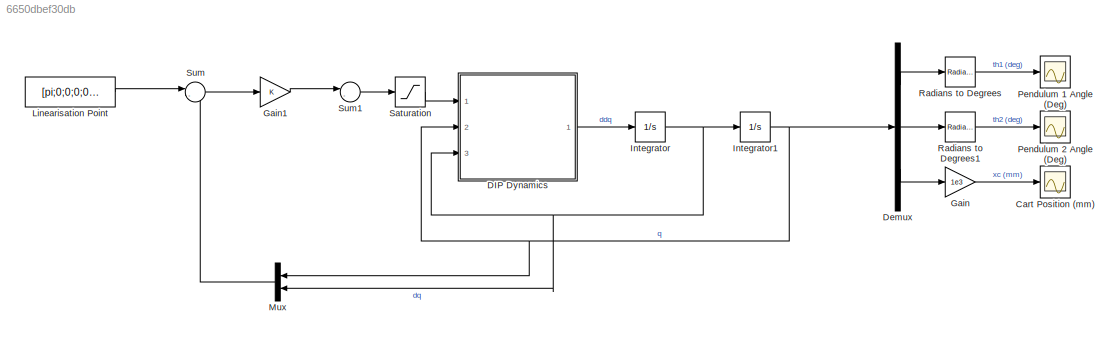
MODEL slx_6650dbef30db
KIND model
CONFIG AbsTol = auto
CONFIG EnableMultiTasking = off
CONFIG FixedStep = 0.002
CONFIG MaxStep = auto
CONFIG MinStep = auto
CONFIG RelTol = 1e-3
CONFIG SampleTimeConstraint = Unconstrained
CONFIG SolverName = ode4
CONFIG StartTime = 0.0
CONFIG StopTime = 10
BLOCK [Scope] Cart Position (mm)
  Floating = off
  NumInputPorts = 1
  Ports = [1]
  ScopeSpecificationString = Simulink.scopes.TimeScopeBlockCfg('CurrentConfiguration', extmgr.ConfigurationSet(extmgr.Configuration('Core','General UI',true),extmgr.Configuration('Core','Source UI',true),extmgr.Configuration('Sources','WiredSimulink',true,'DataLoggingVariableName','xc_SIM','DataLogging',true,'DataLoggingSaveFormat','Array'),extmgr.Configuration('Visuals','Time Domain',true,'SerializedDisplays',{struct('MinYLi...<+1423ch>
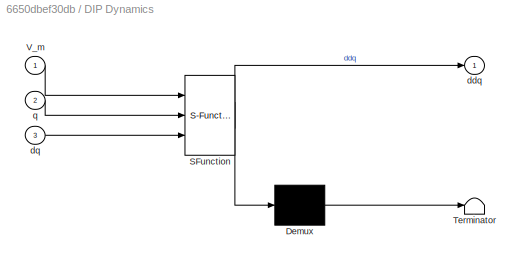
BLOCK [SubSystem] DIP Dynamics
  ErrorFcn = Stateflow.Translate.translate
  PermitHierarchicalResolution = ExplicitOnly
  Ports = [3, 1]
  RequestExecContextInheritance = off
  SFBlockType = MATLAB Function
  TreatAsAtomicUnit = on
BLOCK [Demux] DIP Dynamics/ Demux 
  Outputs = 1
  Ports = [1, 1]
BLOCK [S-Function] DIP Dynamics/ SFunction 
  EnableBusSupport = on
  FunctionName = sf_sfun
  PortCounts = [3 2]
  Ports = [3, 2]
  SFcnIsStateOwnerBlock = off
  SFunctionDeploymentMode = off
  Tag = Stateflow S-Function 8
BLOCK [Terminator] DIP Dynamics/ Terminator 
BLOCK [Inport] DIP Dynamics/V_m
BLOCK [Outport] DIP Dynamics/ddq
BLOCK [Inport] DIP Dynamics/dq
  Port = 3
BLOCK [Inport] DIP Dynamics/q
  Port = 2
BLOCK [Demux] Demux
  Outputs = 3
  Ports = [1, 3]
BLOCK [Gain] Gain
  Gain = 1e3
BLOCK [Gain] Gain1
  Gain = K
  Multiplication = Matrix(K*u)
BLOCK [Integrator] Integrator
  InitialCondition = [0 0 0]
  Ports = [1, 1]
BLOCK [Integrator] Integrator1
  InitialCondition = [175*pi/180 0*pi/180 0]
  Ports = [1, 1]
BLOCK [Constant] Linearisation Point
  Value = [pi;0;0;0;0;0]
BLOCK [Mux] Mux
  DisplayOption = bar
  Inputs = 2
  Ports = [2, 1]
BLOCK [Scope] Pendulum 1 Angle (Deg)
  Floating = off
  NumInputPorts = 1
  Ports = [1]
  ScopeSpecificationString = Simulink.scopes.TimeScopeBlockCfg('CurrentConfiguration', extmgr.ConfigurationSet(extmgr.Configuration('Core','General UI',true),extmgr.Configuration('Core','Source UI',true),extmgr.Configuration('Sources','WiredSimulink',true,'DataLogging',true,'DataLoggingVariableName','th1_SIM','DataLoggingSaveFormat','Array'),extmgr.Configuration('Visuals','Time Domain',true,'SerializedDisplays',{struct('MinYL...<+1460ch>
BLOCK [Scope] Pendulum 2 Angle (Deg)
  Floating = off
  NumInputPorts = 1
  Ports = [1]
  ScopeSpecificationString = Simulink.scopes.TimeScopeBlockCfg('CurrentConfiguration', extmgr.ConfigurationSet(extmgr.Configuration('Core','General UI',true),extmgr.Configuration('Core','Source UI',true),extmgr.Configuration('Sources','WiredSimulink',true,'DataLoggingVariableName','th2_SIM','DataLogging',true,'DataLoggingSaveFormat','Array'),extmgr.Configuration('Visuals','Time Domain',true,'SerializedDisplays',{struct('MinYL...<+1416ch>
BLOCK [Reference] Radians to Degrees  REF=simulink_extras/Transformations/Radians
to Degrees
  Ports = [1, 1]
  SourceBlock = simulink_extras/Transformations/Radians\nto Degrees
  SourceProductBaseCode = SL
  SourceType = RadiansToDegrees
BLOCK [Reference] Radians to Degrees1  REF=simulink_extras/Transformations/Radians
to Degrees
  Ports = [1, 1]
  SourceBlock = simulink_extras/Transformations/Radians\nto Degrees
  SourceProductBaseCode = SL
  SourceType = RadiansToDegrees
BLOCK [Saturate] Saturation
  LowerLimit = -24
  UpperLimit = 24
BLOCK [Sum] Sum
  Inputs = |-+
  Ports = [2, 1]
BLOCK [Sum] Sum1
  Inputs = |-+
  Ports = [2, 1]
LINE DIP Dynamics:1 -> Integrator:1
LINE Demux:1 -> Radians to Degrees:1
LINE Demux:2 -> Radians to Degrees1:1
LINE Demux:3 -> Gain:1
LINE Gain1:1 -> Sum1:1
LINE Gain:1 -> Cart Position (mm):1
NET Integrator1:1 -> DIP Dynamics:2, Demux:1, Mux:1
NET Integrator:1 -> DIP Dynamics:3, Integrator1:1, Mux:2
LINE Linearisation Point:1 -> Sum:1
LINE Mux:1 -> Sum:2
LINE Radians to Degrees1:1 -> Pendulum 2 Angle (Deg):1
LINE Radians to Degrees:1 -> Pendulum 1 Angle (Deg):1
LINE Saturation:1 -> DIP Dynamics:1
LINE Sum1:1 -> Saturation:1
LINE Sum:1 -> Gain1:1
note: NET lines group one-source signal fan-out (src -> all destinations, sorted); 1:1 wires keep LINE
CHART DIP Dynamics states=1 transitions=1
  STATE_LABEL 'eML_blk_kernel()'
  STATE_LABEL 'SCRIPT:\nfunction ddq = Dynamics(V_m,q,dq)\n%#codegen\n\n%    This function was generated by the Symbolic Math Toolbox version 8.7.\n%    26-Sep-2022 15:32:26\n\nBc = 9.3378;\nBp1 = 5.6134e-04;\nBp2 = 4.2362e-04;\nCp1 = 0;\nCp2 = 0;\nJ1 = 0.0011;\nJ2 = 8.2572e-04;\n\nsgn1 = 0;\nsgn2 = 0;\n\nth1 = q(1);\nth2 = q(2);\n\ndth1 = dq(1);\ndth2 = dq(2);\ndx = dq(3);\n\nif dth1 > 0\n    sgn1 = 1;\nelseif dth1 == 0\n    sgn1 = 0;\nels...<+3608ch>'
CHART  states=0 transitions=0
